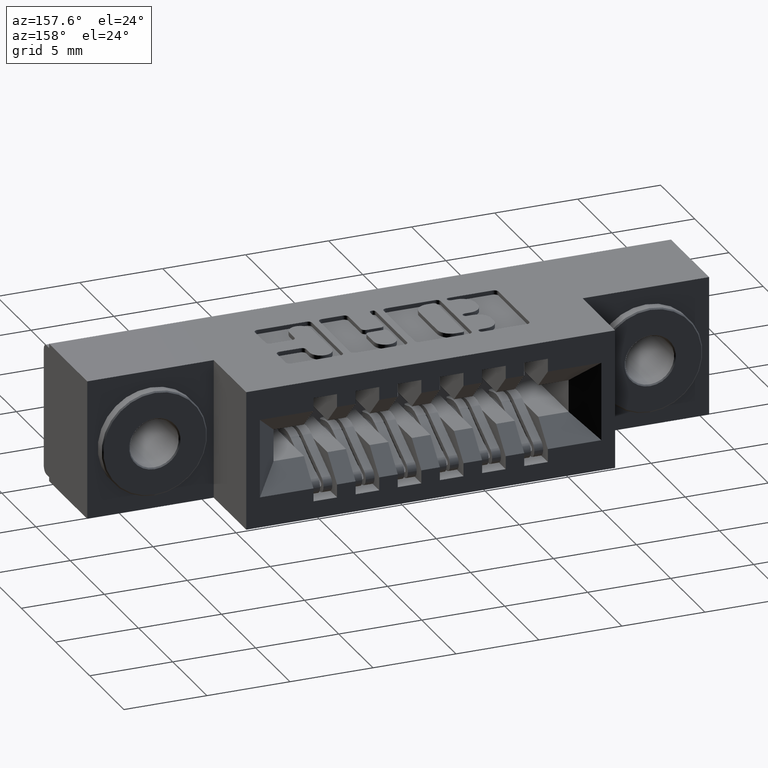
[diagram: clean part render]
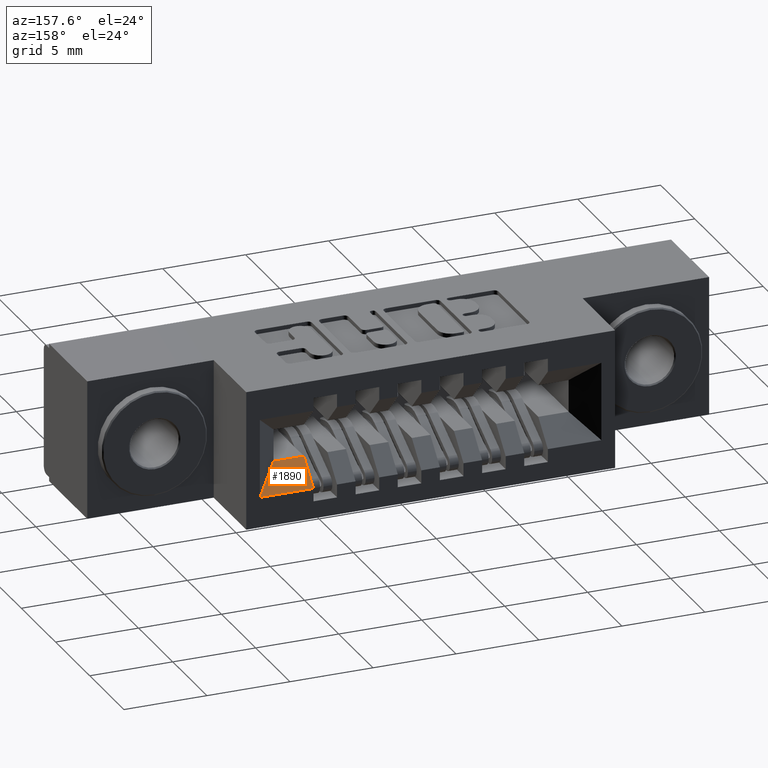
[diagram: same view with one face highlighted and labeled with its STEP entity id]
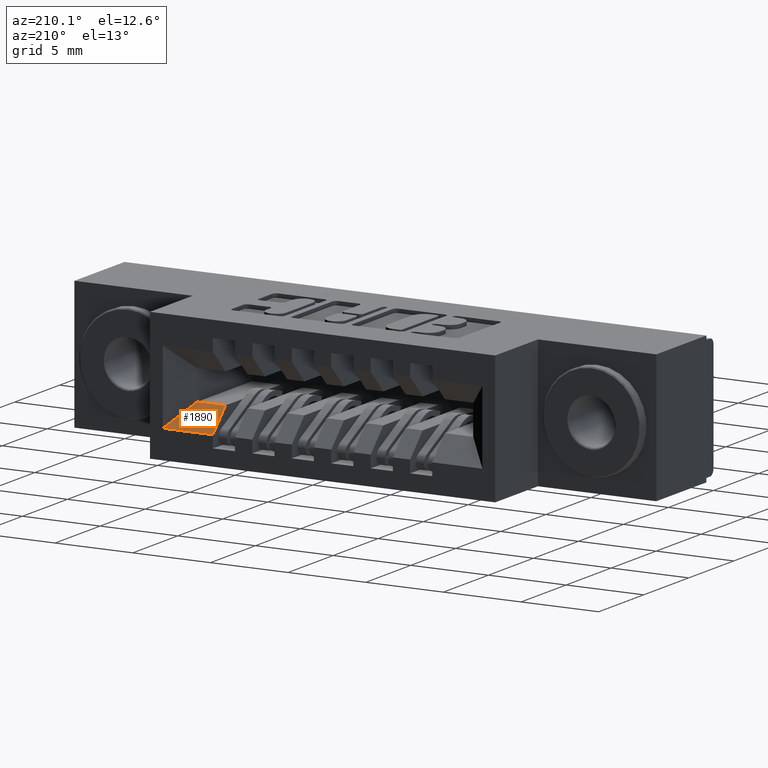
[diagram: same view with one face highlighted and labeled with its STEP entity id]
A machine part, auxiliary view. The second image highlights one B-rep face of the part: STEP entity #1890.
A second angle (auxiliary view) of the same face is appended — the face is thin or edge-on in the first view.
In plain terms, the highlighted planar face has unit normal (-0, -0.7071, -0.7071).
Its self-contained STEP definition (entity closure, byte-faithful):
#1330 = EDGE_LOOP ( 'NONE', ( #5454, #6633, #6969, #6974 ) ) ;
#1593 = VERTEX_POINT ( 'NONE', #9648 ) ;
#1595 = VECTOR ( 'NONE', #10613, 39.37007874015748100 ) ;
#1633 = LINE ( 'NONE', #12073, #6973 ) ;
#1890 = ADVANCED_FACE ( 'NONE', ( #11490 ), #10792, .F. ) ;
#1925 = VERTEX_POINT ( 'NONE', #2136 ) ;
#2136 = CARTESIAN_POINT ( 'NONE',  ( 1.087499999999999500, 0.3819999999999995100, -0.2029999999999998200 ) ) ;
#2653 = DIRECTION ( 'NONE',  ( -3.449479002662268200E-017, -0.7071067811865459100, -0.7071067811865491300 ) ) ;
#2671 = VERTEX_POINT ( 'NONE', #9368 ) ;
#4589 = CARTESIAN_POINT ( 'NONE',  ( 0.3874999999999995100, 0.3819999999999995100, -0.2029999999999997900 ) ) ;
#5359 = DIRECTION ( 'NONE',  ( 0.5773502691896247300, 0.5773502691896276200, -0.5773502691896249500 ) ) ;
#5375 = CARTESIAN_POINT ( 'NONE',  ( 1.062166666666666300, 0.3566666666666660800, -0.1776666666666665600 ) ) ;
#5454 = ORIENTED_EDGE ( 'NONE', *, *, #6743, .F. ) ;
#6038 = EDGE_CURVE ( 'NONE', #1925, #2671, #1633, .T. ) ;
#6209 = EDGE_CURVE ( 'NONE', #1593, #2671, #12095, .T. ) ;
#6306 = EDGE_CURVE ( 'NONE', #1925, #11615, #12854, .T. ) ;
#6633 = ORIENTED_EDGE ( 'NONE', *, *, #6209, .T. ) ;
#6743 = EDGE_CURVE ( 'NONE', #1593, #11615, #10102, .T. ) ;
#6969 = ORIENTED_EDGE ( 'NONE', *, *, #6038, .F. ) ;
#6973 = VECTOR ( 'NONE', #11989, 39.37007874015748100 ) ;
#6974 = ORIENTED_EDGE ( 'NONE', *, *, #6306, .T. ) ;
#7416 = VECTOR ( 'NONE', #7834, 39.37007874015748100 ) ;
#7834 = DIRECTION ( 'NONE',  ( -0.0000000000000000000, -0.7071067811865491300, 0.7071067811865459100 ) ) ;
#8279 = CARTESIAN_POINT ( 'NONE',  ( 1.015499999999999400, 0.3819999999999995100, -0.2029999999999997900 ) ) ;
#9368 = CARTESIAN_POINT ( 'NONE',  ( 1.015499999999999400, 0.3819999999999997300, -0.2029999999999999300 ) ) ;
#9648 = CARTESIAN_POINT ( 'NONE',  ( 1.015499999999999400, 0.4370000000000000600, -0.2580000000000000600 ) ) ;
#10102 = LINE ( 'NONE', #10535, #1595 ) ;
#10369 = DIRECTION ( 'NONE',  ( 0.0000000000000000000, 0.7071067811865491300, -0.7071067811865459100 ) ) ;
#10535 = CARTESIAN_POINT ( 'NONE',  ( 3.512375991854052900E-018, 0.4370000000000000000, -0.2580000000000000100 ) ) ;
#10613 = DIRECTION ( 'NONE',  ( 1.000000000000000000, 0.0000000000000000000, -4.878299988686184300E-017 ) ) ;
#10792 = PLANE ( 'NONE',  #12296 ) ;
#10921 = VECTOR ( 'NONE', #5359, 39.37007874015748100 ) ;
#11470 = CARTESIAN_POINT ( 'NONE',  ( 1.142499999999999800, 0.4370000000000000000, -0.2580000000000000600 ) ) ;
#11490 = FACE_OUTER_BOUND ( 'NONE', #1330, .T. ) ;
#11615 = VERTEX_POINT ( 'NONE', #11470 ) ;
#11989 = DIRECTION ( 'NONE',  ( -1.000000000000000000, 0.0000000000000000000, 4.878299988686184300E-017 ) ) ;
#12073 = CARTESIAN_POINT ( 'NONE',  ( 0.3874999999999995100, 0.3819999999999995100, -0.2029999999999997900 ) ) ;
#12095 = LINE ( 'NONE', #8279, #7416 ) ;
#12296 = AXIS2_PLACEMENT_3D ( 'NONE', #4589, #2653, #10369 ) ;
#12854 = LINE ( 'NONE', #5375, #10921 ) ;